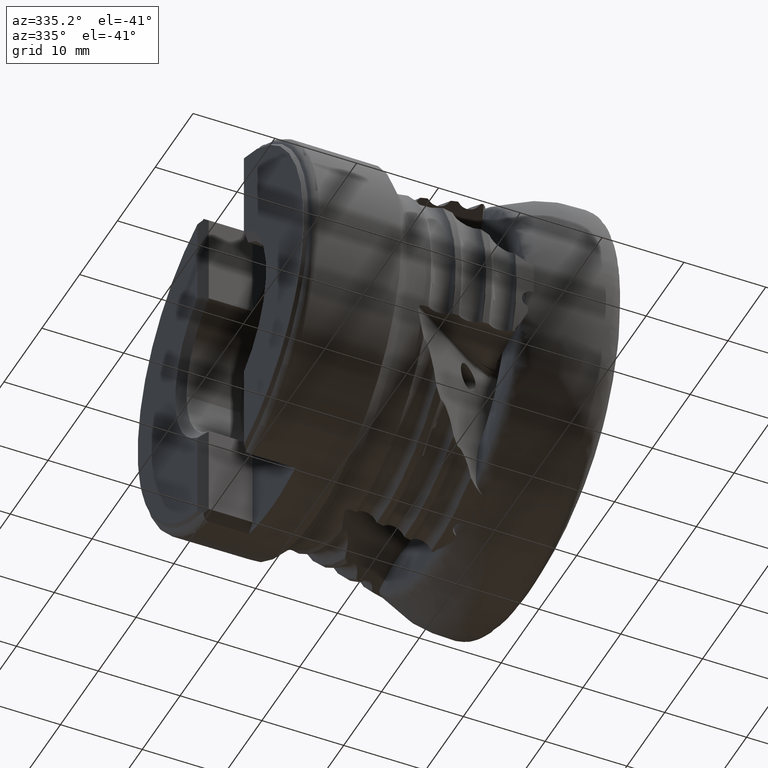
[diagram: clean part render]
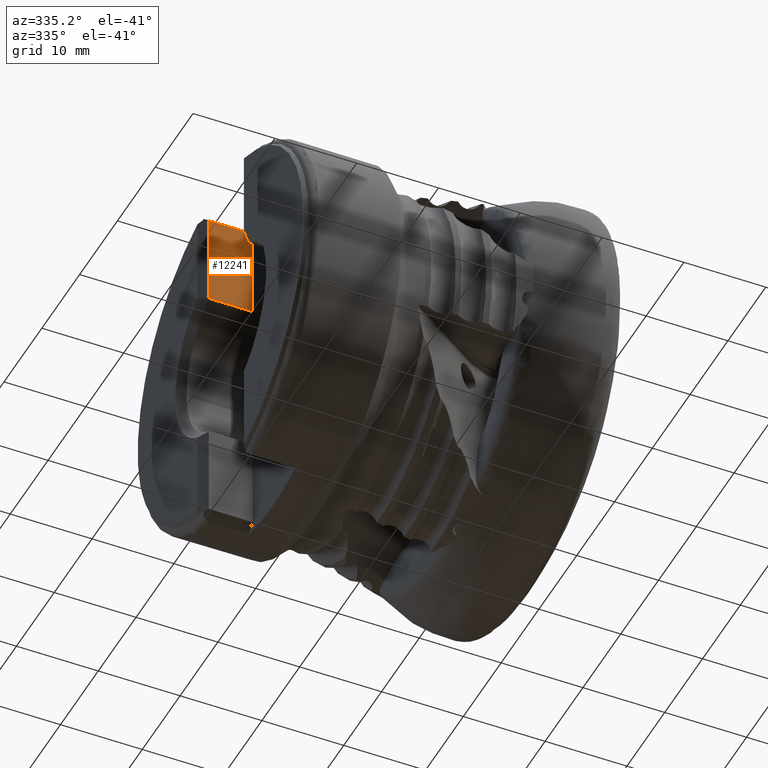
[diagram: same view with one face highlighted and labeled with its STEP entity id]
A machine part, auxiliary view. The second image highlights one B-rep face of the part: STEP entity #12241.
In plain terms, the highlighted planar face has unit normal (0, 1, 0).
Its self-contained STEP definition (entity closure, byte-faithful):
#1128 = LINE ( 'NONE', #10209, #6398 ) ;
#1588 = ORIENTED_EDGE ( 'NONE', *, *, #10259, .F. ) ;
#1605 = DIRECTION ( 'NONE',  ( -1.000000000000000000, 4.863710680308805700E-016, 0.0000000000000000000 ) ) ;
#2063 = DIRECTION ( 'NONE',  ( -1.000000000000000000, -1.167393512548520100E-018, 0.0000000000000000000 ) ) ;
#2275 = CARTESIAN_POINT ( 'NONE',  ( -37.45525917703945900, 5.199999999999996600, 21.20653861410987400 ) ) ;
#2763 = DIRECTION ( 'NONE',  ( -0.0000000000000000000, -0.0000000000000000000, 1.000000000000000000 ) ) ;
#2793 = VECTOR ( 'NONE', #8497, 1000.000000000000000 ) ;
#2855 = DIRECTION ( 'NONE',  ( -0.0000000000000000000, -0.0000000000000000000, 1.000000000000000000 ) ) ;
#2904 = FACE_OUTER_BOUND ( 'NONE', #9213, .T. ) ;
#3088 = CARTESIAN_POINT ( 'NONE',  ( 0.3947408229605504100, 5.199999999999977100, 9.778324242936527400 ) ) ;
#3956 = LINE ( 'NONE', #11427, #6408 ) ;
#4650 = LINE ( 'NONE', #3088, #12707 ) ;
#4729 = EDGE_CURVE ( 'NONE', #5709, #10440, #4650, .T. ) ;
#5709 = VERTEX_POINT ( 'NONE', #6965 ) ;
#6350 = EDGE_CURVE ( 'NONE', #12832, #12642, #8716, .T. ) ;
#6398 = VECTOR ( 'NONE', #2855, 1000.000000000000000 ) ;
#6408 = VECTOR ( 'NONE', #2763, 1000.000000000000000 ) ;
#6851 = PLANE ( 'NONE',  #11974 ) ;
#6965 = CARTESIAN_POINT ( 'NONE',  ( -32.60525917703945700, 5.199999999999994000, 9.778324242936518500 ) ) ;
#7089 = ORIENTED_EDGE ( 'NONE', *, *, #6350, .T. ) ;
#7708 = EDGE_CURVE ( 'NONE', #5709, #12832, #3956, .T. ) ;
#7900 = DIRECTION ( 'NONE',  ( 4.863710680308805700E-016, 1.000000000000000000, 0.0000000000000000000 ) ) ;
#8497 = DIRECTION ( 'NONE',  ( -1.000000000000000000, 4.863710680308805700E-016, -1.351177297591363600E-016 ) ) ;
#8716 = LINE ( 'NONE', #2275, #2793 ) ;
#9213 = EDGE_LOOP ( 'NONE', ( #13258, #7089, #1588, #12781 ) ) ;
#9337 = CARTESIAN_POINT ( 'NONE',  ( -32.60525917703945700, 5.199999999999994000, 21.20653861410987100 ) ) ;
#10209 = CARTESIAN_POINT ( 'NONE',  ( -37.95525917703945900, 5.199999999999996600, -35.00000000000000000 ) ) ;
#10259 = EDGE_CURVE ( 'NONE', #10440, #12642, #1128, .T. ) ;
#10440 = VERTEX_POINT ( 'NONE', #11744 ) ;
#11027 = CARTESIAN_POINT ( 'NONE',  ( -37.95525917703945900, 5.199999999999996600, -35.00000000000000000 ) ) ;
#11168 = CARTESIAN_POINT ( 'NONE',  ( -37.95525917703945900, 5.199999999999994800, 21.20653861410986400 ) ) ;
#11427 = CARTESIAN_POINT ( 'NONE',  ( -32.60525917703945700, 5.199999999999994000, -35.00000000000000000 ) ) ;
#11744 = CARTESIAN_POINT ( 'NONE',  ( -37.95525917703945900, 5.199999999999996600, 9.778324242936516700 ) ) ;
#11974 = AXIS2_PLACEMENT_3D ( 'NONE', #11027, #7900, #1605 ) ;
#12241 = ADVANCED_FACE ( 'NONE', ( #2904 ), #6851, .F. ) ;
#12642 = VERTEX_POINT ( 'NONE', #11168 ) ;
#12707 = VECTOR ( 'NONE', #2063, 1000.000000000000000 ) ;
#12781 = ORIENTED_EDGE ( 'NONE', *, *, #4729, .F. ) ;
#12832 = VERTEX_POINT ( 'NONE', #9337 ) ;
#13258 = ORIENTED_EDGE ( 'NONE', *, *, #7708, .T. ) ;